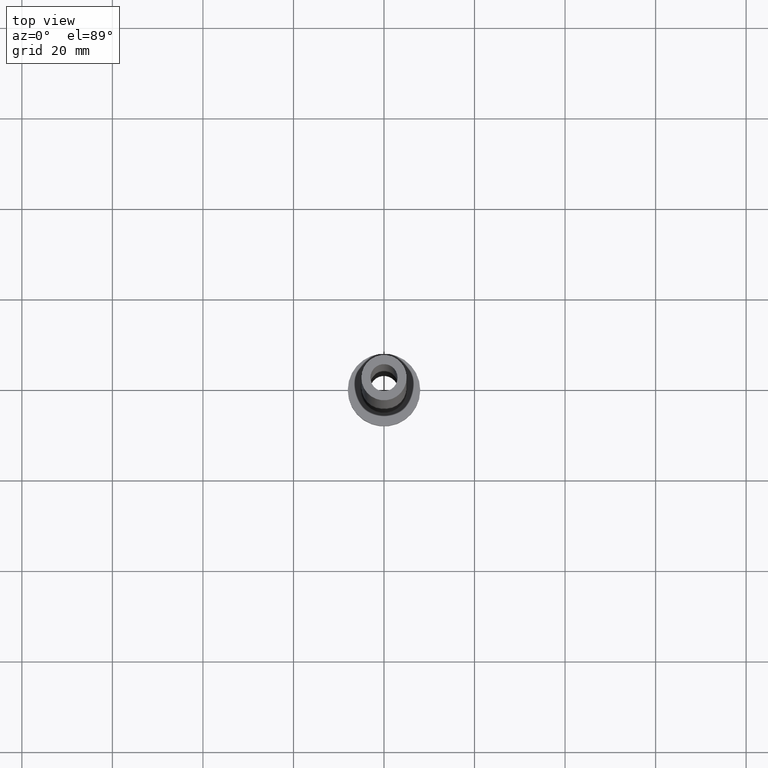
[diagram: clean part render]
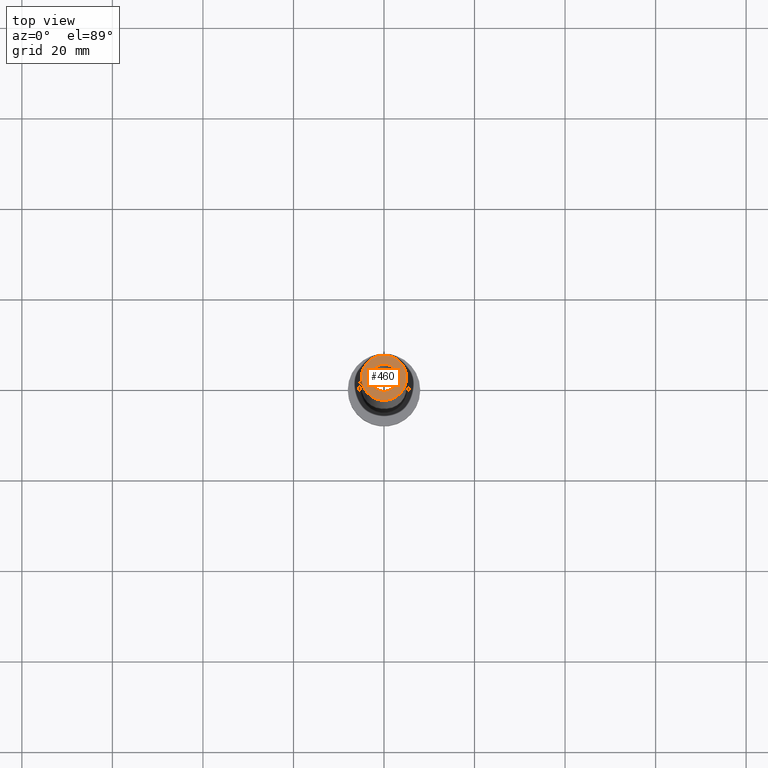
[diagram: same view with one face highlighted and labeled with its STEP entity id]
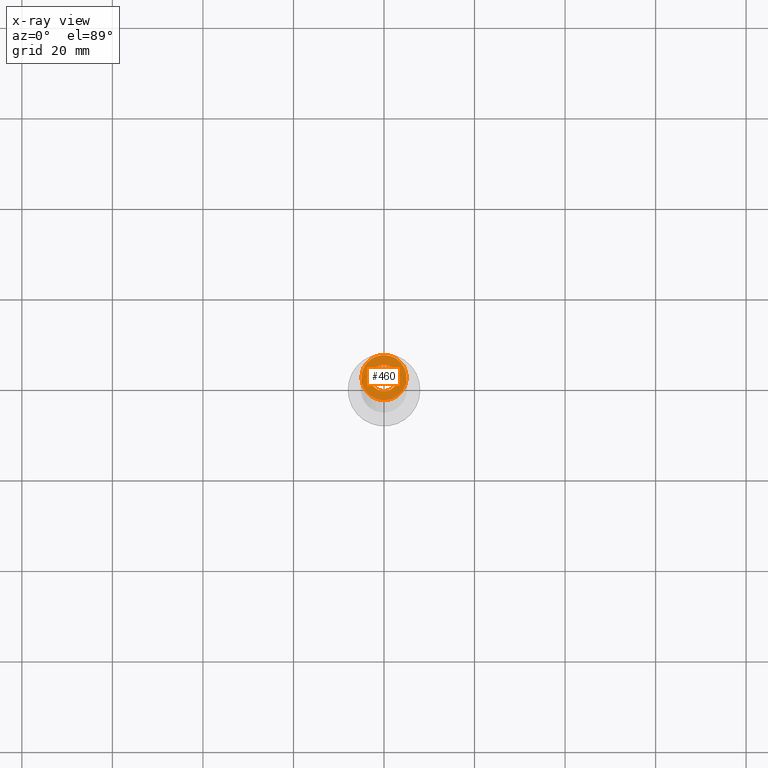
[diagram: x-ray of the same camera — body ghosted, the highlighted face saturated]
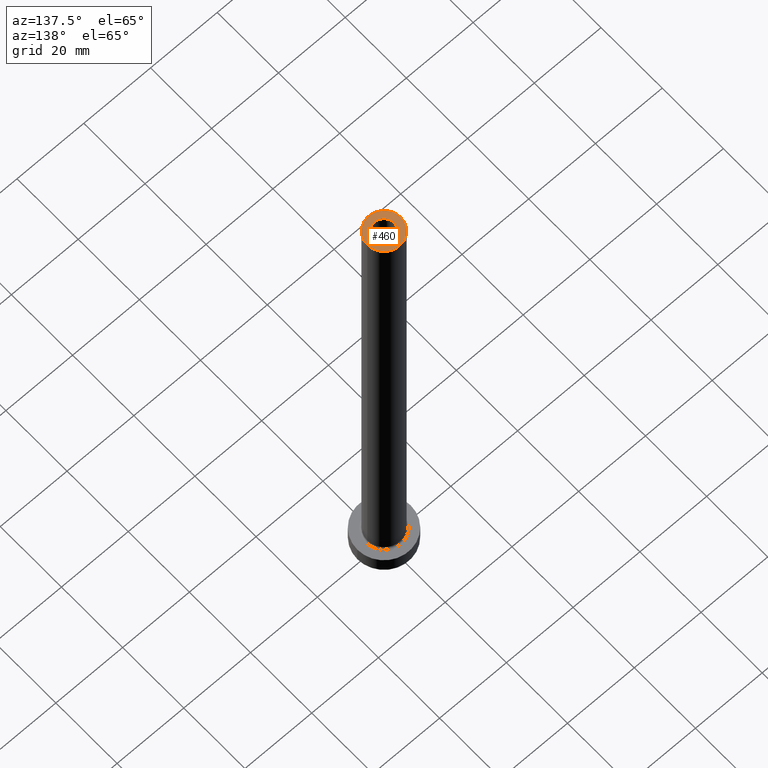
[diagram: same view with one face highlighted and labeled with its STEP entity id]
A machine part, top view. The second image highlights one B-rep face of the part: STEP entity #460.
The next image is the same camera in x-ray: the body ghosted, the highlighted face saturated — about 0% of this face is hidden behind the body in this view.
A second angle (auxiliary view) of the same face is appended — the face is thin or edge-on in the first view.
In plain terms, the highlighted planar face has unit normal (0, 0, 1).
Its self-contained STEP definition (entity closure, byte-faithful):
#5 = CARTESIAN_POINT ( 'NONE',  ( 0.000000000000000000, 0.000000000000000000, 160.0000000000000000 ) ) ;
#12 = EDGE_LOOP ( 'NONE', ( #191, #122 ) ) ;
#13 = CIRCLE ( 'NONE', #452, 5.000000000000000000 ) ;
#17 = DIRECTION ( 'NONE',  ( 0.000000000000000000, 0.000000000000000000, 1.000000000000000000 ) ) ;
#22 = EDGE_CURVE ( 'NONE', #319, #364, #455, .T. ) ;
#23 = PLANE ( 'NONE',  #237 ) ;
#25 = AXIS2_PLACEMENT_3D ( 'NONE', #446, #115, #127 ) ;
#31 = ORIENTED_EDGE ( 'NONE', *, *, #101, .T. ) ;
#72 = DIRECTION ( 'NONE',  ( 0.000000000000000000, 0.000000000000000000, 1.000000000000000000 ) ) ;
#82 = DIRECTION ( 'NONE',  ( 1.000000000000000000, 0.000000000000000000, 0.000000000000000000 ) ) ;
#93 = EDGE_CURVE ( 'NONE', #364, #319, #329, .T. ) ;
#101 = EDGE_CURVE ( 'NONE', #118, #269, #250, .T. ) ;
#115 = DIRECTION ( 'NONE',  ( 0.000000000000000000, 0.000000000000000000, 1.000000000000000000 ) ) ;
#118 = VERTEX_POINT ( 'NONE', #399 ) ;
#121 = DIRECTION ( 'NONE',  ( 1.000000000000000000, 0.000000000000000000, 0.000000000000000000 ) ) ;
#122 = ORIENTED_EDGE ( 'NONE', *, *, #22, .F. ) ;
#127 = DIRECTION ( 'NONE',  ( 1.000000000000000000, 0.000000000000000000, 0.000000000000000000 ) ) ;
#130 = CARTESIAN_POINT ( 'NONE',  ( -3.000000000000000444, 0.000000000000000000, 160.0000000000000000 ) ) ;
#137 = FACE_OUTER_BOUND ( 'NONE', #187, .T. ) ;
#164 = DIRECTION ( 'NONE',  ( 0.000000000000000000, 0.000000000000000000, 1.000000000000000000 ) ) ;
#187 = EDGE_LOOP ( 'NONE', ( #248, #31 ) ) ;
#188 = EDGE_CURVE ( 'NONE', #269, #118, #13, .T. ) ;
#191 = ORIENTED_EDGE ( 'NONE', *, *, #93, .F. ) ;
#194 = DIRECTION ( 'NONE',  ( 1.000000000000000000, 0.000000000000000000, 0.000000000000000000 ) ) ;
#234 = DIRECTION ( 'NONE',  ( 1.000000000000000000, 0.000000000000000000, -0.000000000000000000 ) ) ;
#237 = AXIS2_PLACEMENT_3D ( 'NONE', #270, #164, #234 ) ;
#248 = ORIENTED_EDGE ( 'NONE', *, *, #188, .T. ) ;
#250 = CIRCLE ( 'NONE', #25, 5.000000000000000000 ) ;
#260 = CARTESIAN_POINT ( 'NONE',  ( 0.000000000000000000, 0.000000000000000000, 160.0000000000000000 ) ) ;
#265 = AXIS2_PLACEMENT_3D ( 'NONE', #371, #17, #121 ) ;
#269 = VERTEX_POINT ( 'NONE', #276 ) ;
#270 = CARTESIAN_POINT ( 'NONE',  ( 0.000000000000000000, 0.000000000000000000, 160.0000000000000000 ) ) ;
#276 = CARTESIAN_POINT ( 'NONE',  ( -5.000000000000000000, 0.000000000000000000, 160.0000000000000000 ) ) ;
#302 = CARTESIAN_POINT ( 'NONE',  ( 3.000000000000000444, 3.673940397442059868E-16, 160.0000000000000000 ) ) ;
#303 = FACE_BOUND ( 'NONE', #12, .T. ) ;
#319 = VERTEX_POINT ( 'NONE', #302 ) ;
#329 = CIRCLE ( 'NONE', #265, 3.000000000000000444 ) ;
#364 = VERTEX_POINT ( 'NONE', #130 ) ;
#371 = CARTESIAN_POINT ( 'NONE',  ( 0.000000000000000000, 0.000000000000000000, 160.0000000000000000 ) ) ;
#379 = AXIS2_PLACEMENT_3D ( 'NONE', #260, #442, #194 ) ;
#399 = CARTESIAN_POINT ( 'NONE',  ( 5.000000000000000000, 6.123233995736766282E-16, 160.0000000000000000 ) ) ;
#442 = DIRECTION ( 'NONE',  ( 0.000000000000000000, 0.000000000000000000, 1.000000000000000000 ) ) ;
#446 = CARTESIAN_POINT ( 'NONE',  ( 0.000000000000000000, 0.000000000000000000, 160.0000000000000000 ) ) ;
#452 = AXIS2_PLACEMENT_3D ( 'NONE', #5, #72, #82 ) ;
#455 = CIRCLE ( 'NONE', #379, 3.000000000000000444 ) ;
#460 = ADVANCED_FACE ( 'NONE', ( #303, #137 ), #23, .T. ) ;